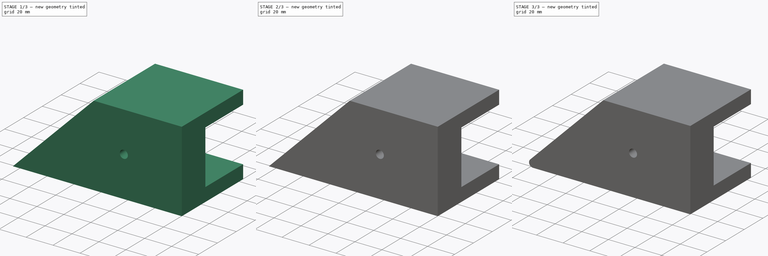
[diagram: build sequence overview — one tinted view per stage of 3, left to right]
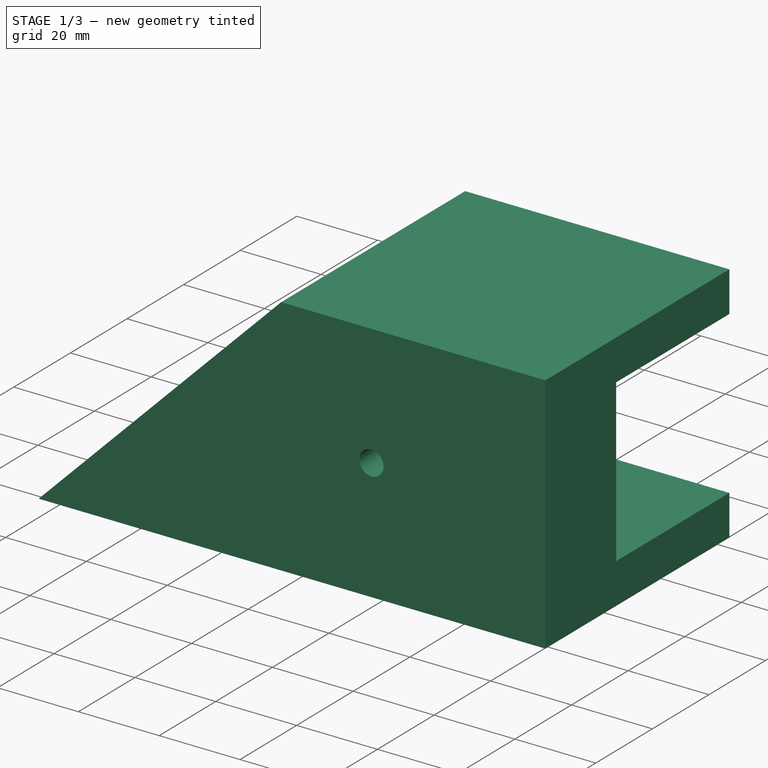
[diagram: stage 1 of 3 — iso view after this stage's code; geometry added in this stage tinted green]
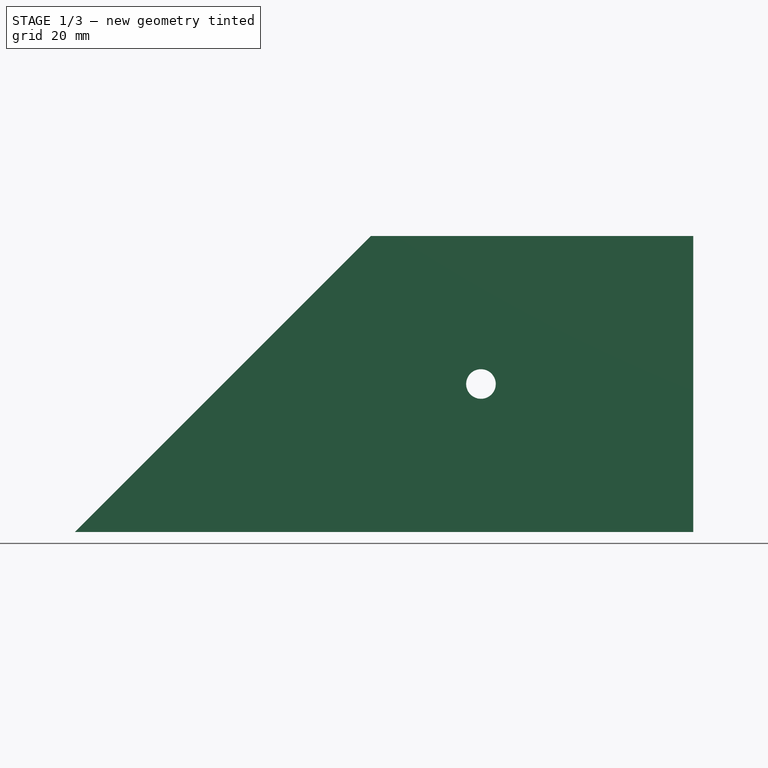
[diagram: stage 1 of 3 — front view after this stage's code; geometry added in this stage tinted green]
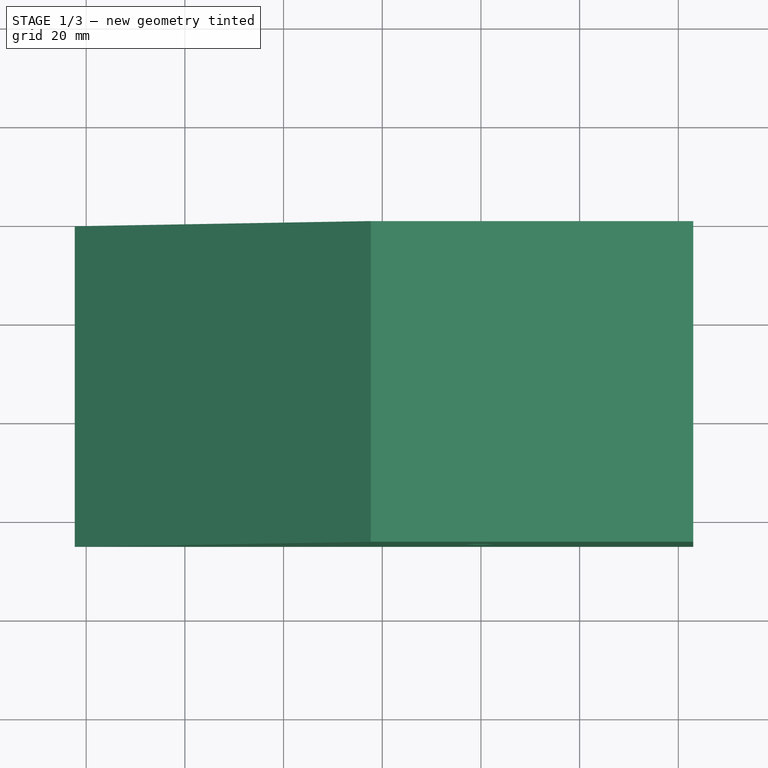
[diagram: stage 1 of 3 — top view after this stage's code; geometry added in this stage tinted green]
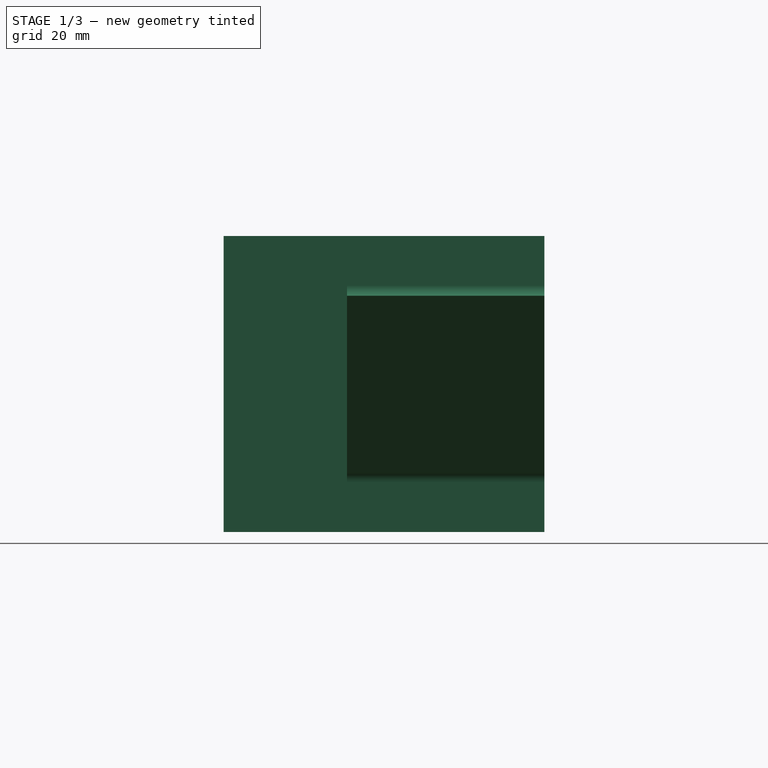
[diagram: stage 1 of 3 — right view after this stage's code; geometry added in this stage tinted green]
FCSTD DOCUMENT  (FreeCAD 0.19R22960 (Git))
Label: Bohrschablone45
License: All rights reserved
LicenseURL: http://en.wikipedia.org/wiki/All_rights_reserved
objects: Sketcher::SketchObject×3, PartDesign::Pad×2, PartDesign::Fillet×2, PartDesign::Pocket×1, PartDesign::Body×1
note: 14 computed .brp shape members not serialized (recipe doc carries the construction recipe); baked Part::Feature solids carry a one-line shape summary decoded from their .brp

FEATURE [Sketcher::SketchObject] Sketch
  MapMode = 5
  Placement = pos=(0,0,0) rot=(1,0,0;1.5708rad)
  Support = -> [XZ_Plane]
  sketch-geometry (18):
    g0: Circle [constr] CenterX=0 CenterY=0 CenterZ=0 NormalX=0 NormalY=0 NormalZ=1 AngleXU=0 Radius=3
    g1: LineSegment [constr] StartX=43.0294 StartY=-20 StartZ=0 EndX=43.0294 EndY=20 EndZ=0
    g2: LineSegment StartX=0.908117 StartY=17.8787 StartZ=0 EndX=-34.8492 EndY=-17.8787 EndZ=0
    g3: LineSegment StartX=-33.9706 StartY=-20 StartZ=0 EndX=43.0294 EndY=-20 EndZ=0
    g4: LineSegment [constr] StartX=0 StartY=0 StartZ=0 EndX=-8.48528 EndY=8.48528 EndZ=0
    g5: LineSegment StartX=43.0294 StartY=-20 StartZ=0 EndX=43.0294 EndY=-30 EndZ=0
    g6: LineSegment StartX=43.0294 StartY=-30 StartZ=0 EndX=-82.3259 EndY=-30 EndZ=0
    g7: LineSegment StartX=43.0294 StartY=20 StartZ=0 EndX=43.0294 EndY=30 EndZ=0
    g8: LineSegment StartX=43.0294 StartY=30 StartZ=0 EndX=-22.3259 EndY=30 EndZ=0
    g9: LineSegment StartX=-22.3259 StartY=30 StartZ=0 EndX=-82.3259 EndY=-30 EndZ=0
    g10: LineSegment [constr] StartX=-8.48528 StartY=8.48528 StartZ=0 EndX=-26.163 EndY=26.163 EndZ=0
    g11: ArcOfCircle CenterX=3.02944 CenterY=20 CenterZ=0 NormalX=0 NormalY=0 NormalZ=1 AngleXU=0 Radius=3 StartAngle=0 EndAngle=3.92699
    g12: ArcOfCircle CenterX=-36.9706 CenterY=-20 CenterZ=0 NormalX=0 NormalY=0 NormalZ=1 AngleXU=0 Radius=3 StartAngle=0.785398 EndAngle=6.28319
    g13: LineSegment [constr] StartX=0.908117 StartY=17.8787 StartZ=0 EndX=3.02944 EndY=20 EndZ=0
    g14: LineSegment [constr] StartX=3.02944 StartY=20 StartZ=0 EndX=6.02944 EndY=20 EndZ=0
    g15: LineSegment [constr] StartX=-36.9706 StartY=-20 StartZ=0 EndX=-34.8492 EndY=-17.8787 EndZ=0
    g16: LineSegment [constr] StartX=-36.9706 StartY=-20 StartZ=0 EndX=-33.9706 EndY=-20 EndZ=0
    g17: LineSegment StartX=6.02944 StartY=20 StartZ=0 EndX=43.0294 EndY=20 EndZ=0
  constraints (49):
    c: Coincident(g0,g-1)
    c: Coincident(g3,g1)
    c: Horizontal(g3)
    c: Symmetric(g1,g1,g-1)
    c: DistanceY(g1,g1) = 40
    c: Angle(g3,g2) = 0.785398
    c: Coincident(g4,g0)
    c: PointOnObject(g4,g2)
    c: Distance(g4) = 12
    c: Perpendicular(g2,g4)
    c: Radius(g0) = 3
    c: Coincident(g5,g3)
    c: Vertical(g5)
    c: Coincident(g6,g5)
    c: Horizontal(g6)
    c: Vertical(g7)
    c: Coincident(g8,g7)
    c: Horizontal(g8)
    c: Coincident(g9,g8)
    c: Coincident(g9,g6)
    c: Equal(g7,g5)
    c: DistanceY(g5,g5) = 10
    c: Parallel(g2,g9)
    c: Coincident(g10,g4)
    c: PointOnObject(g10,g9)
    c: Perpendicular(g10,g2)
    c: Distance(g10) = 25
    c: Radius(g12) = 3
    c: Equal(g11,g12)
    c: Coincident(g2,g11)
    c: Coincident(g13,g2)
    c: Coincident(g13,g11)
    c: Coincident(g14,g11)
    c: Horizontal(g14)
    c: Parallel(g13,g2)
    c: Coincident(g2,g12)
    c: Coincident(g3,g12)
    c: Coincident(g15,g12)
    c: Coincident(g15,g2)
    c: Coincident(g16,g12)
    c: Coincident(g16,g3)
    c: Parallel(g16,g3)
    c: Parallel(g15,g2)
    c: Coincident(g17,g11)
    c: Coincident(g17,g1)
    c: Horizontal(g17)
    c: Coincident(g7,g17)
    c: Coincident(g14,g11)
    c: DistanceX(g17,g17) = 37
FEATURE [PartDesign::Pad] Pad
  Direction = (1,1,1)
  Length = 40
  Length2 = 100
  Midplane = true
  Placement = pos=(0,0,0) rot=(1,0,0;1.5708rad)
  Profile = -> Sketch
  Type = 0
FEATURE [Sketcher::SketchObject] Sketch001
  AttachmentOffset = pos=(0,0,20) rot=(0,0,1;0rad)
  MapMode = 5
  Placement = pos=(0,-20,-4.4e-15) rot=(1,0,0;1.5708rad)
  Support = -> [XZ_Plane]
  sketch-geometry (12):
    g0: Circle CenterX=0 CenterY=0 CenterZ=0 NormalX=0 NormalY=0 NormalZ=1 AngleXU=0 Radius=3
    g1: LineSegment StartX=43.0294 StartY=-20 StartZ=0 EndX=43.0294 EndY=20 EndZ=0
    g2: LineSegment [constr] StartX=43.0294 StartY=20 StartZ=0 EndX=3.02944 EndY=20 EndZ=0
    g3: LineSegment [constr] StartX=3.02944 StartY=20 StartZ=0 EndX=-36.9706 EndY=-20 EndZ=0
    g4: LineSegment [constr] StartX=-36.9706 StartY=-20 StartZ=0 EndX=43.0294 EndY=-20 EndZ=0
    g5: LineSegment [constr] StartX=0 StartY=0 StartZ=0 EndX=-8.48528 EndY=8.48528 EndZ=0
    g6: LineSegment StartX=43.0294 StartY=-20 StartZ=0 EndX=43.0294 EndY=-30 EndZ=0
    g7: LineSegment StartX=43.0294 StartY=-30 StartZ=0 EndX=-82.3259 EndY=-30 EndZ=0
    g8: LineSegment StartX=43.0294 StartY=20 StartZ=0 EndX=43.0294 EndY=30 EndZ=0
    g9: LineSegment StartX=43.0294 StartY=30 StartZ=0 EndX=-22.3259 EndY=30 EndZ=0
    g10: LineSegment StartX=-22.3259 StartY=30 StartZ=0 EndX=-82.3259 EndY=-30 EndZ=0
    g11: LineSegment [constr] StartX=-8.48528 StartY=8.48528 StartZ=0 EndX=-26.163 EndY=26.163 EndZ=0
  constraints (33):
    c: Coincident(g0,g-1)
    c: Coincident(g2,g1)
    c: Horizontal(g2)
    c: Coincident(g3,g2)
    c: Coincident(g4,g3)
    c: Coincident(g4,g1)
    c: Horizontal(g4)
    c: Symmetric(g1,g1,g-1)
    c: DistanceY(g1,g1) = 40
    c: DistanceX(g2,g2) = 40
    c: Angle(g4,g3) = 0.785398
    c: Coincident(g5,g0)
    c: PointOnObject(g5,g3)
    c: Distance(g5) = 12
    c: Perpendicular(g3,g5)
    c: Radius(g0) = 3
    c: Coincident(g6,g4)
    c: Vertical(g6)
    c: Coincident(g7,g6)
    c: Horizontal(g7)
    c: Coincident(g8,g2)
    c: Vertical(g8)
    c: Coincident(g9,g8)
    c: Horizontal(g9)
    c: Coincident(g10,g9)
    c: Coincident(g10,g7)
    c: Equal(g8,g6)
    c: DistanceY(g6,g6) = 10
    c: Parallel(g3,g10)
    c: Coincident(g11,g5)
    c: PointOnObject(g11,g10)
    c: Perpendicular(g11,g3)
    c: Distance(g11) = 25
FEATURE [PartDesign::Pad] Pad001
  BaseFeature = -> Pad
  Direction = (1,1,1)
  Length = 25
  Length2 = 100
  Placement = pos=(0,0,0) rot=(1,0,0;1.5708rad)
  Profile = -> Sketch001
  Type = 0
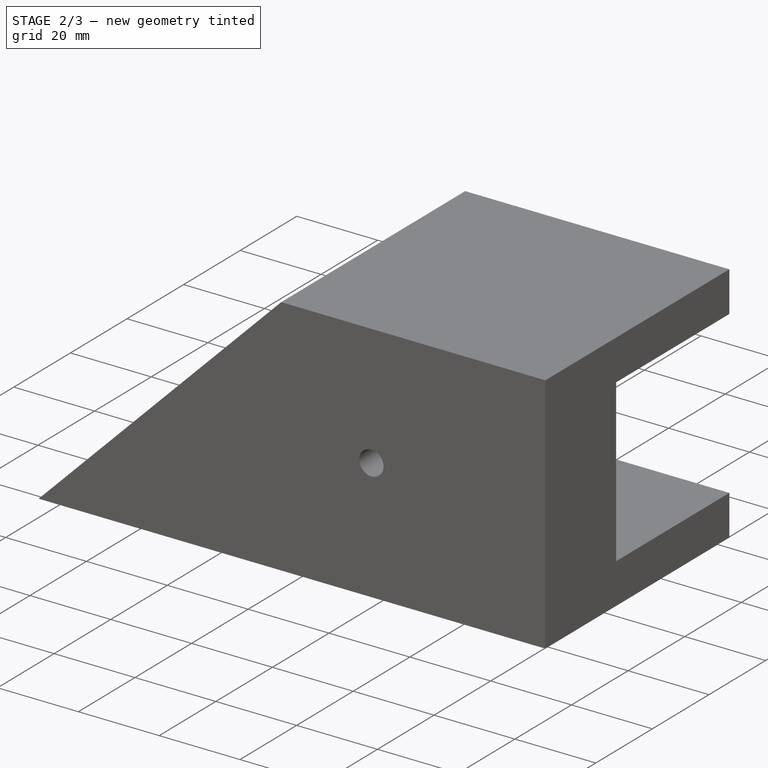
[diagram: stage 2 of 3 — iso view after this stage's code; geometry added in this stage tinted green]
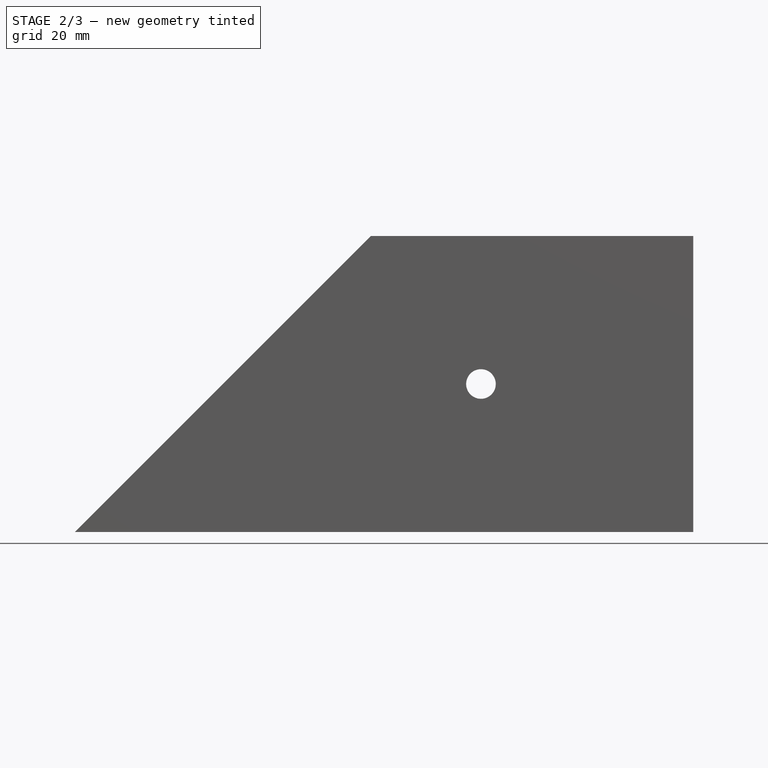
[diagram: stage 2 of 3 — front view after this stage's code; geometry added in this stage tinted green]
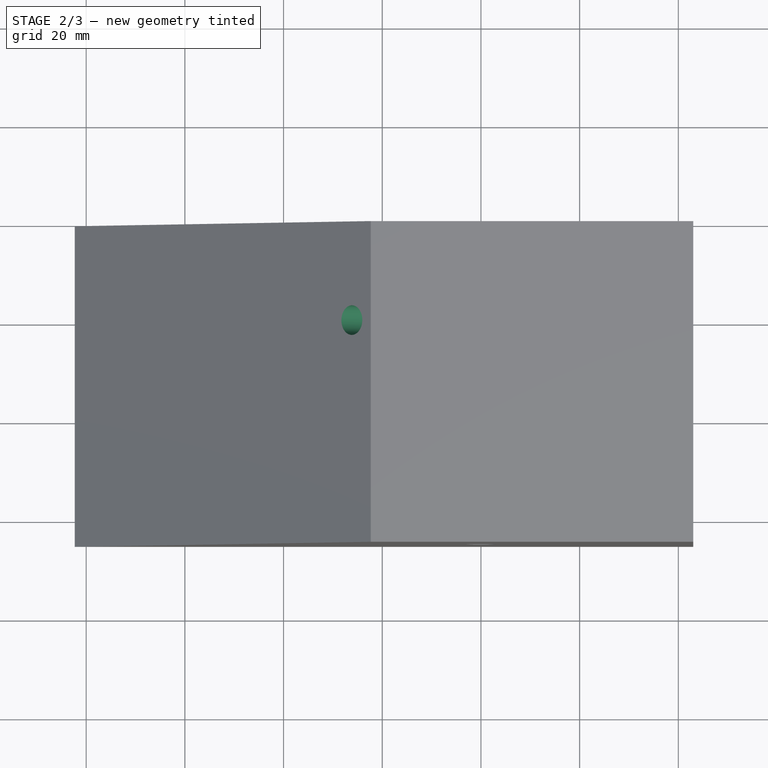
[diagram: stage 2 of 3 — top view after this stage's code; geometry added in this stage tinted green]
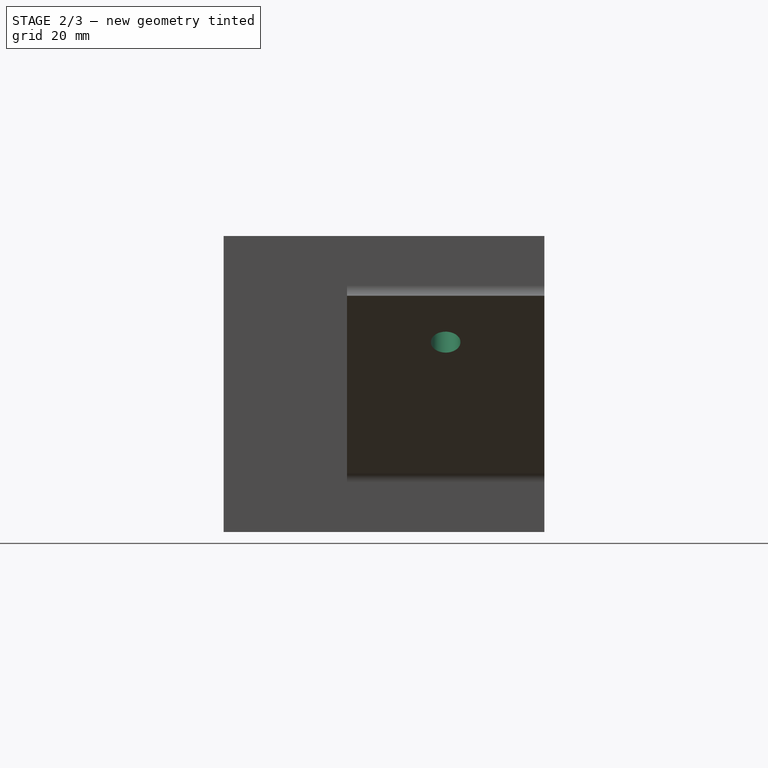
[diagram: stage 2 of 3 — right view after this stage's code; geometry added in this stage tinted green]
FEATURE [Sketcher::SketchObject] Sketch002
  AttachmentOffset = pos=(0,0,0) rot=(1,0,0;0.785398rad)
  MapMode = 5
  Placement = pos=(0,0,0) rot=(0.678598,0.678598,0.281085;2.59356rad)
  Support = -> [YZ_Plane]
  sketch-geometry (1):
    g0: Circle CenterX=0 CenterY=0 CenterZ=0 NormalX=0 NormalY=0 NormalZ=1 AngleXU=0 Radius=3
  constraints (2):
    c: Coincident(g0,g-1)
    c: Radius(g0) = 3
FEATURE [PartDesign::Pocket] Pocket
  BaseFeature = -> Pad001
  Length = 5
  Length2 = 100
  Placement = pos=(0,0,0) rot=(1,0,0;1.5708rad)
  Profile = -> Sketch002
  Type = 1
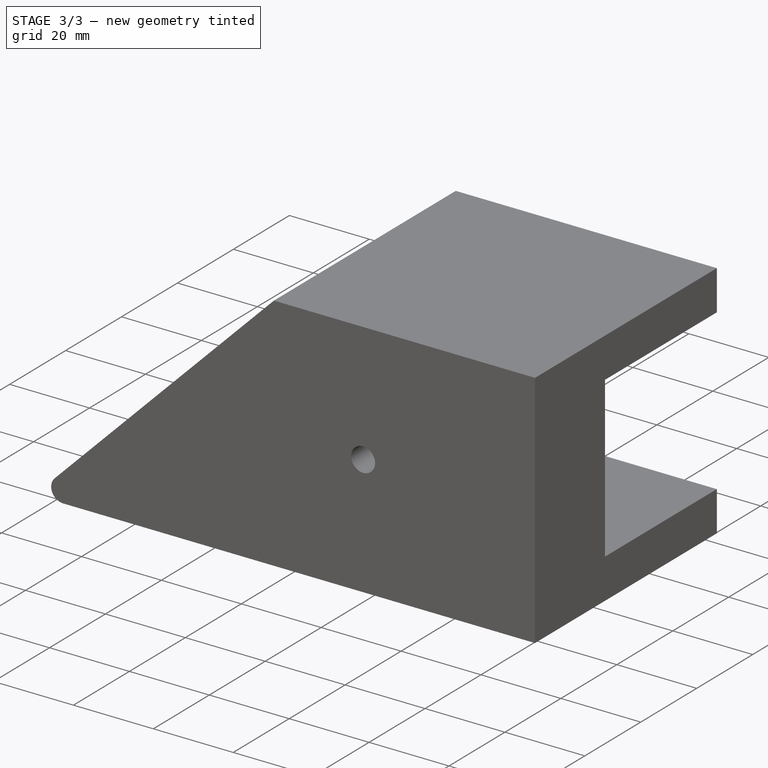
[diagram: stage 3 of 3 — iso view after this stage's code; geometry added in this stage tinted green]
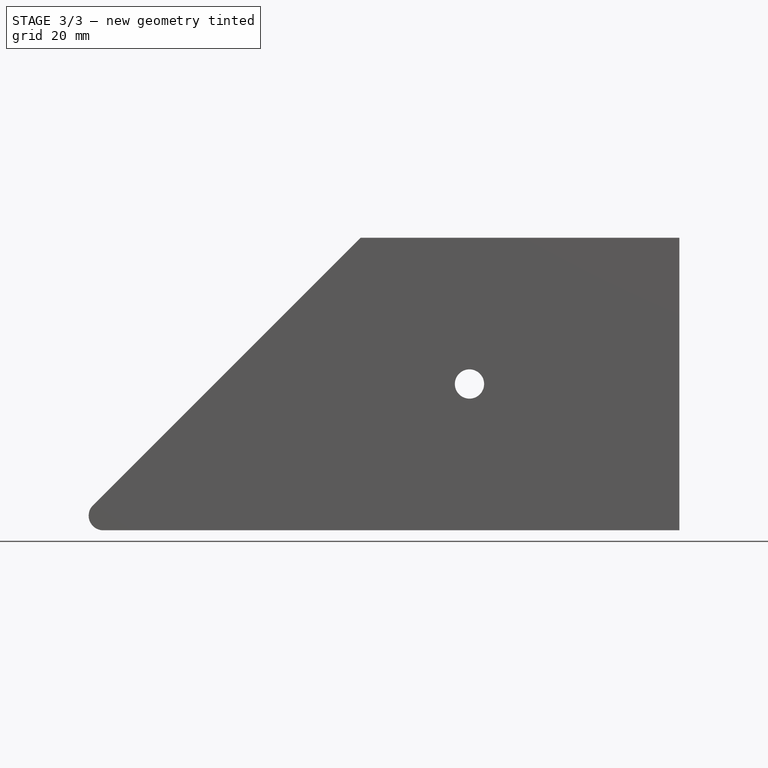
[diagram: stage 3 of 3 — front view after this stage's code; geometry added in this stage tinted green]
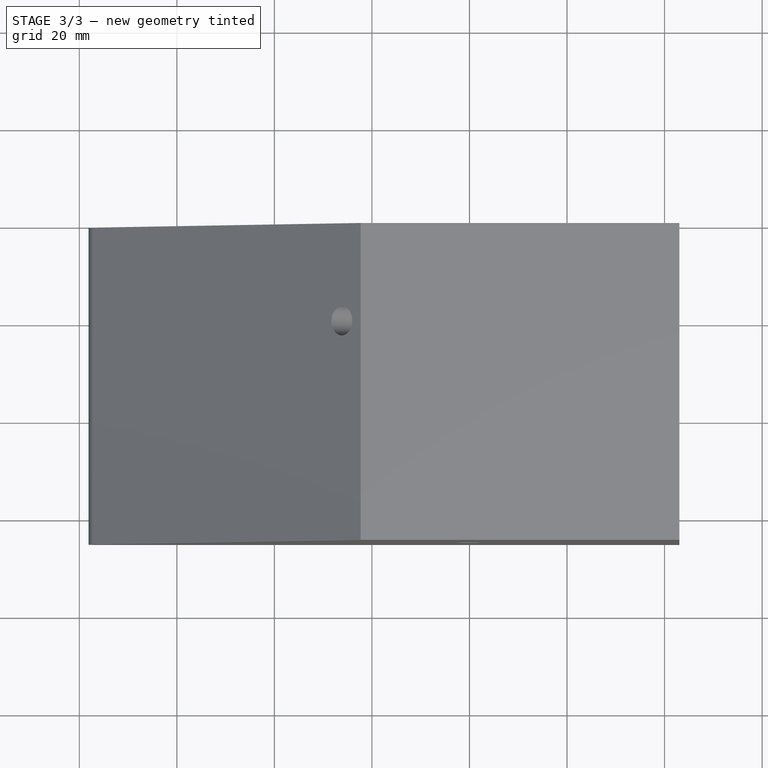
[diagram: stage 3 of 3 — top view after this stage's code; geometry added in this stage tinted green]
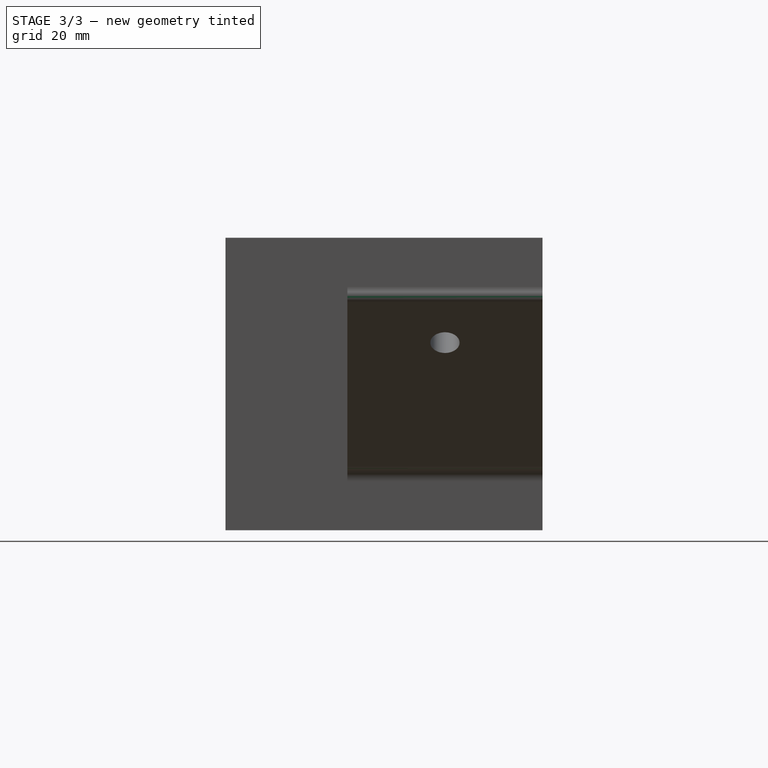
[diagram: stage 3 of 3 — right view after this stage's code; geometry added in this stage tinted green]
FEATURE [PartDesign::Fillet] Fillet
  Base = -> Pocket [Edge25,Edge10,Edge2,Edge1]
  BaseFeature = -> Pocket
  Placement = pos=(0,0,0) rot=(1,0,0;1.5708rad)
  Radius = 2
  SupportTransform = false
FEATURE [PartDesign::Fillet] Fillet001
  Base = -> Fillet [Edge57,Edge40]
  BaseFeature = -> Fillet
  Placement = pos=(0,0,0) rot=(1,0,0;1.5708rad)
  Radius = 3
  SupportTransform = false
FEATURE [PartDesign::Body] Body
  Group = -> [Sketch,Pad,Pad001,Sketch002,Pocket,Fillet,Fillet001]
  Origin = -> Origin
  Tip = -> Fillet001
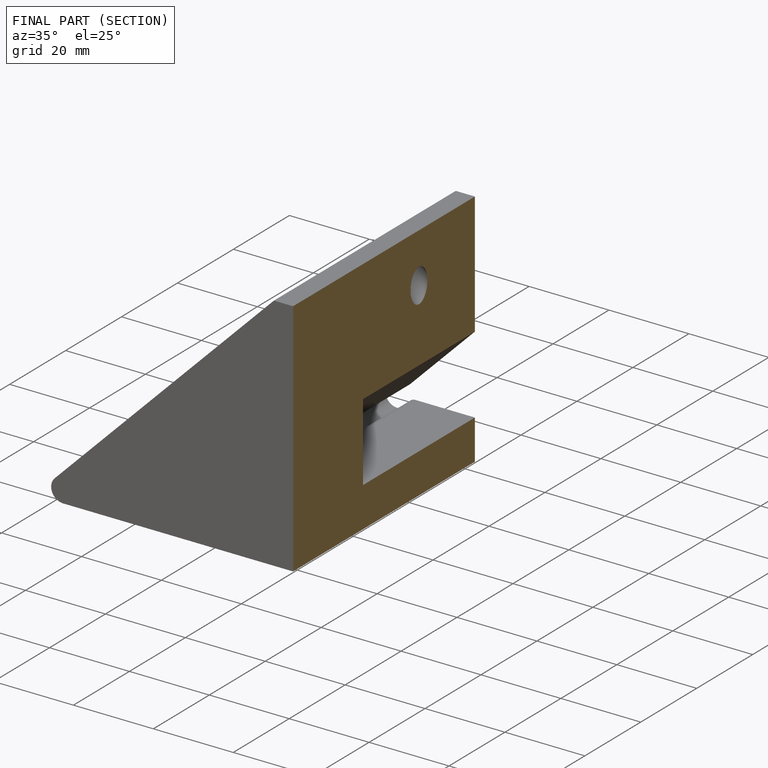
[diagram: finished part — half-section view (interior)]
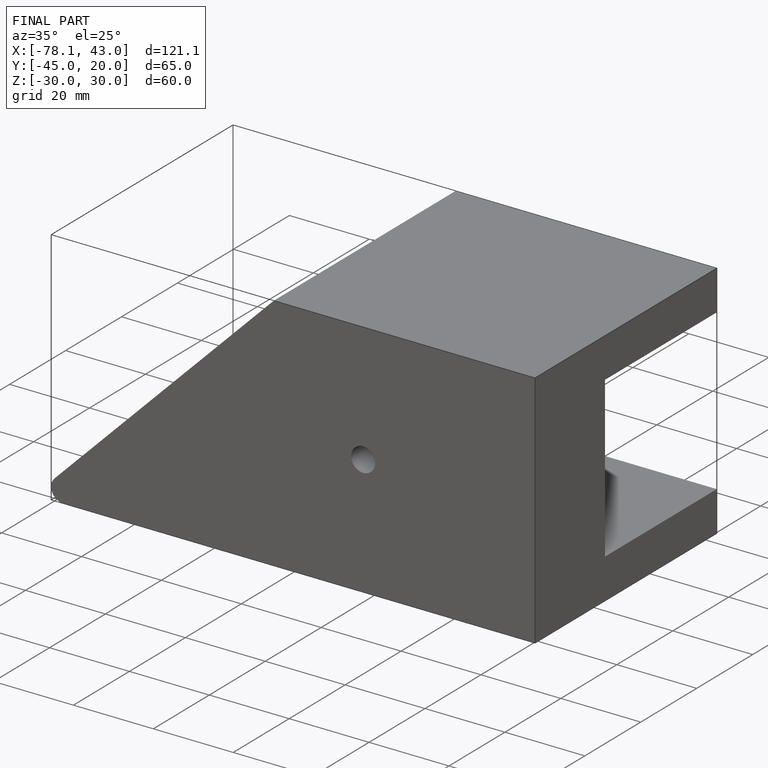
[diagram: finished part — iso view with bounding-box wireframe]
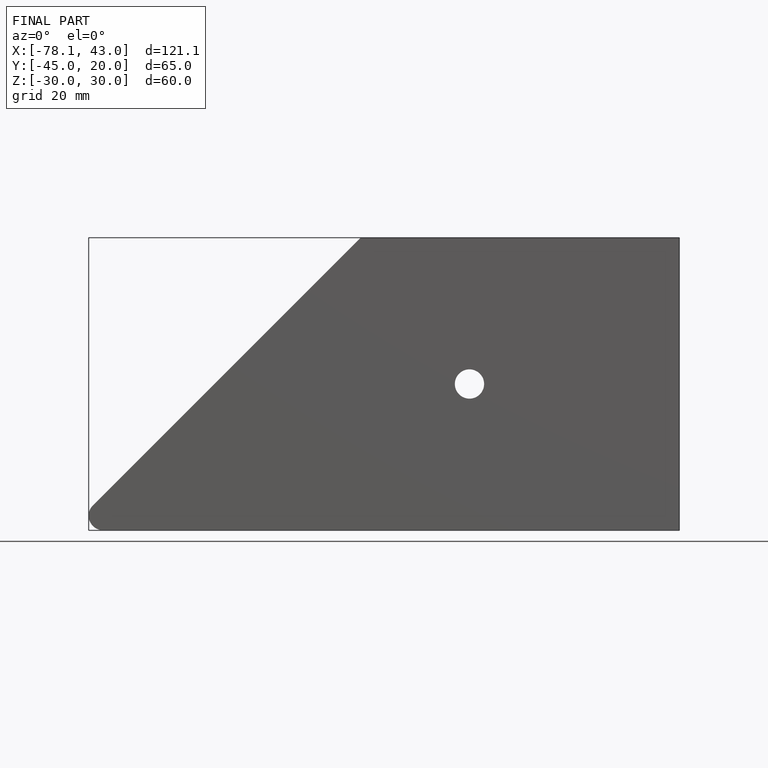
[diagram: finished part — front view with bounding-box wireframe]
